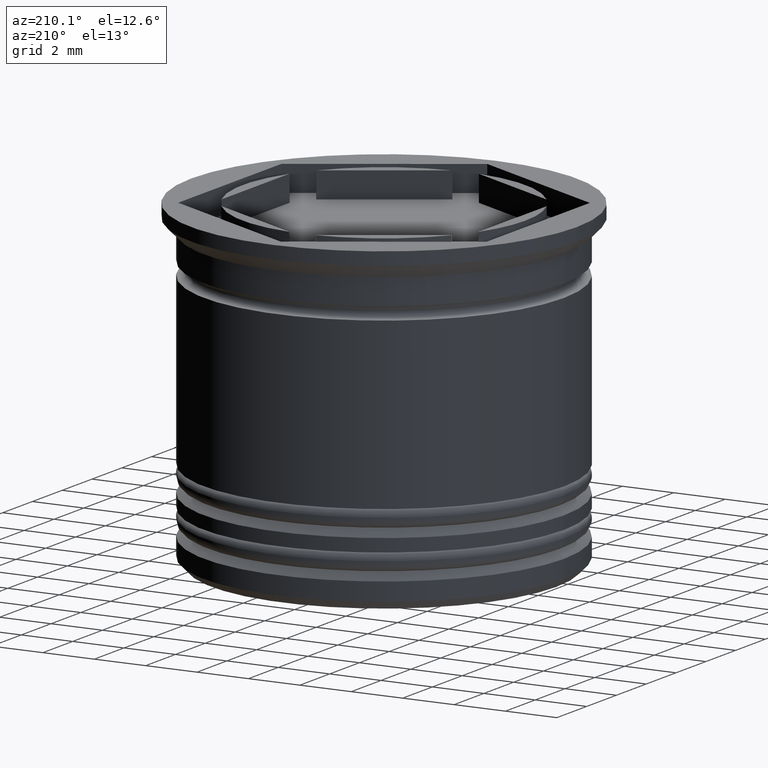
[diagram: clean part render]
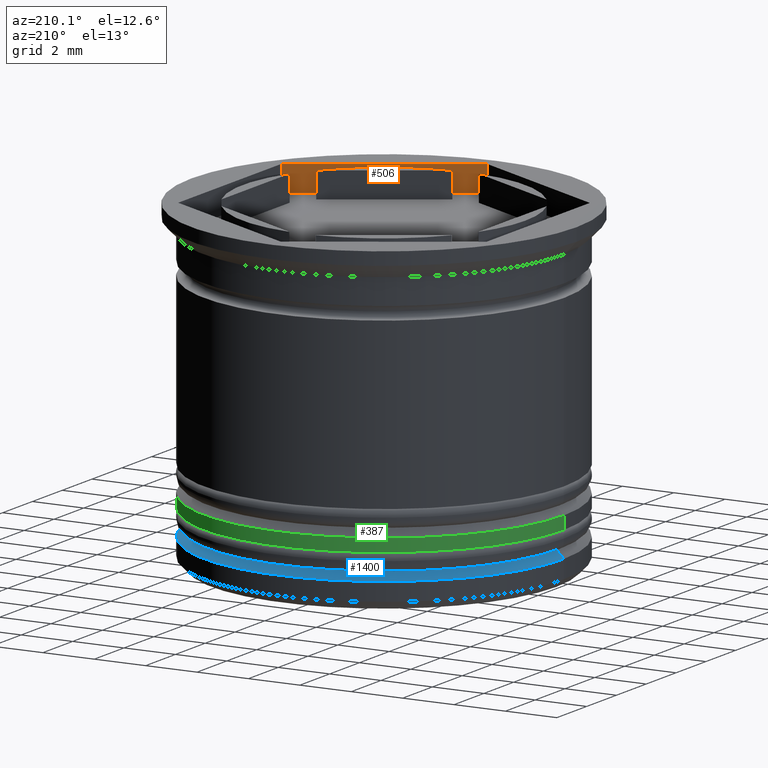
[diagram: same view with three faces highlighted in distinct colors, each labeled with its STEP entity id]
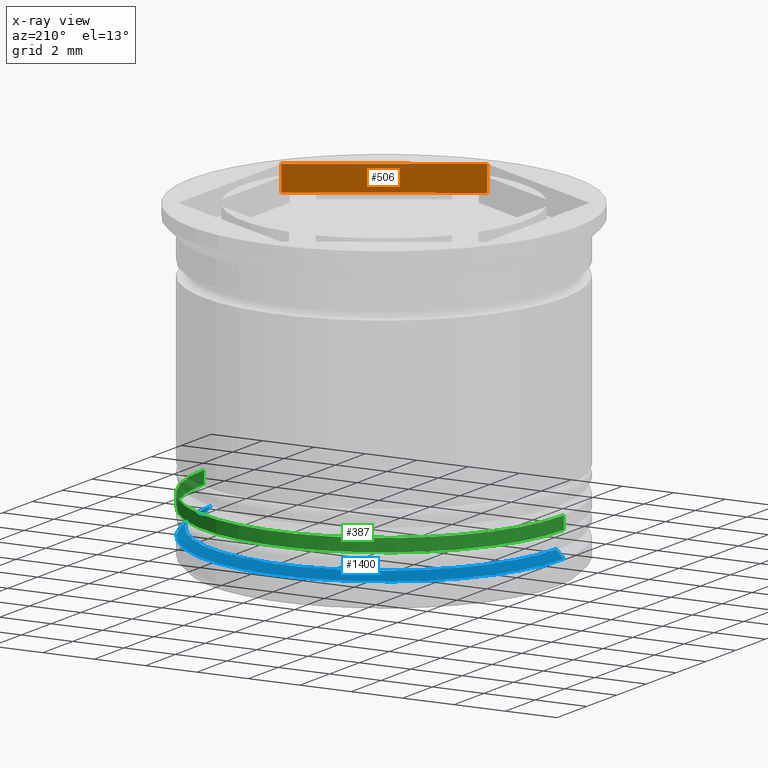
[diagram: x-ray of the same camera — body ghosted, the three highlighted faces saturated]
A machine part, auxiliary view with three faces highlighted in distinct colors.
The next image is the same camera in x-ray (body ghosted, the three faces saturated) — at least one of them is partly hidden behind the body in this view.
Their STEP definitions:

[orange] entity #506 — the highlighted planar face has unit normal (0.5, -0.866, 0).
#36 = PLANE ( 'NONE',  #1602 ) ;
#71 = VERTEX_POINT ( 'NONE', #1494 ) ;
#121 = DIRECTION ( 'NONE',  ( 0.5000000000000001110, -0.8660254037844385966, 0.000000000000000000 ) ) ;
#204 = EDGE_CURVE ( 'NONE', #1133, #71, #965, .T. ) ;
#212 = DIRECTION ( 'NONE',  ( -0.000000000000000000, -0.000000000000000000, 1.000000000000000000 ) ) ;
#214 = ORIENTED_EDGE ( 'NONE', *, *, #1562, .T. ) ;
#280 = CARTESIAN_POINT ( 'NONE',  ( -3.394223061414856671E-17, -6.928203230275509661, 0.000000000000000000 ) ) ;
#411 = DIRECTION ( 'NONE',  ( 0.8660254037844385966, 0.5000000000000001110, 0.000000000000000000 ) ) ;
#464 = EDGE_CURVE ( 'NONE', #1214, #1483, #952, .T. ) ;
#499 = EDGE_LOOP ( 'NONE', ( #214, #1335, #505, #1307 ) ) ;
#505 = ORIENTED_EDGE ( 'NONE', *, *, #509, .F. ) ;
#506 = ADVANCED_FACE ( 'NONE', ( #970 ), #36, .F. ) ;
#509 = EDGE_CURVE ( 'NONE', #1133, #1214, #871, .T. ) ;
#531 = CARTESIAN_POINT ( 'NONE',  ( 6.000000000000000000, -3.464101615137753942, -1.000000000000000000 ) ) ;
#652 = CARTESIAN_POINT ( 'NONE',  ( -3.394223061414856671E-17, -6.928203230275509661, -1.000000000000000000 ) ) ;
#675 = CARTESIAN_POINT ( 'NONE',  ( -3.394223061414856671E-17, -6.928203230275509661, -1.000000000000000000 ) ) ;
#710 = VECTOR ( 'NONE', #411, 1000.000000000000000 ) ;
#871 = LINE ( 'NONE', #1302, #710 ) ;
#941 = CARTESIAN_POINT ( 'NONE',  ( 6.000000000000000000, -3.464101615137753942, -1.000000000000000000 ) ) ;
#952 = LINE ( 'NONE', #531, #1368 ) ;
#953 = CARTESIAN_POINT ( 'NONE',  ( -3.394223061414856671E-17, -6.928203230275509661, -1.000000000000000000 ) ) ;
#965 = LINE ( 'NONE', #953, #1501 ) ;
#970 = FACE_OUTER_BOUND ( 'NONE', #499, .T. ) ;
#1133 = VERTEX_POINT ( 'NONE', #675 ) ;
#1214 = VERTEX_POINT ( 'NONE', #941 ) ;
#1271 = DIRECTION ( 'NONE',  ( -0.000000000000000000, -0.000000000000000000, 1.000000000000000000 ) ) ;
#1302 = CARTESIAN_POINT ( 'NONE',  ( -3.394223061414856671E-17, -6.928203230275509661, -1.000000000000000000 ) ) ;
#1307 = ORIENTED_EDGE ( 'NONE', *, *, #204, .T. ) ;
#1335 = ORIENTED_EDGE ( 'NONE', *, *, #464, .F. ) ;
#1368 = VECTOR ( 'NONE', #1271, 1000.000000000000000 ) ;
#1483 = VERTEX_POINT ( 'NONE', #1622 ) ;
#1486 = DIRECTION ( 'NONE',  ( 0.8660254037844385966, 0.5000000000000001110, 0.000000000000000000 ) ) ;
#1494 = CARTESIAN_POINT ( 'NONE',  ( -3.394223061414856671E-17, -6.928203230275509661, 0.000000000000000000 ) ) ;
#1501 = VECTOR ( 'NONE', #212, 1000.000000000000000 ) ;
#1562 = EDGE_CURVE ( 'NONE', #71, #1483, #1953, .T. ) ;
#1602 = AXIS2_PLACEMENT_3D ( 'NONE', #652, #121, #1623 ) ;
#1622 = CARTESIAN_POINT ( 'NONE',  ( 6.000000000000000000, -3.464101615137753942, 0.000000000000000000 ) ) ;
#1623 = DIRECTION ( 'NONE',  ( 0.8660254037844385966, 0.5000000000000001110, 0.000000000000000000 ) ) ;
#1953 = LINE ( 'NONE', #280, #1965 ) ;
#1965 = VECTOR ( 'NONE', #1486, 1000.000000000000000 ) ;

[blue] entity #1400 — the highlighted conical surface has half-angle 45 deg.
#24 = AXIS2_PLACEMENT_3D ( 'NONE', #709, #595, #825 ) ;
#105 = EDGE_CURVE ( 'NONE', #578, #548, #833, .T. ) ;
#109 = CARTESIAN_POINT ( 'NONE',  ( 0.000000000000000000, 0.000000000000000000, -11.00000000000000178 ) ) ;
#165 = CIRCLE ( 'NONE', #1155, 6.700000000000000178 ) ;
#168 = CARTESIAN_POINT ( 'NONE',  ( 6.499999999999992006, 7.960204194457785616E-16, -11.00000000000000178 ) ) ;
#290 = CARTESIAN_POINT ( 'NONE',  ( 7.000000000000000888, 0.000000000000000000, -11.50000000000000533 ) ) ;
#326 = ORIENTED_EDGE ( 'NONE', *, *, #105, .F. ) ;
#333 = VECTOR ( 'NONE', #732, 1000.000000000000000 ) ;
#455 = CARTESIAN_POINT ( 'NONE',  ( -6.700000000000000178, 8.205133554287266562E-16, -11.20000000000000639 ) ) ;
#532 = EDGE_CURVE ( 'NONE', #1158, #578, #1766, .T. ) ;
#548 = VERTEX_POINT ( 'NONE', #290 ) ;
#578 = VERTEX_POINT ( 'NONE', #1453 ) ;
#595 = DIRECTION ( 'NONE',  ( 0.000000000000000000, 0.000000000000000000, -1.000000000000000000 ) ) ;
#620 = EDGE_CURVE ( 'NONE', #1787, #1158, #165, .T. ) ;
#709 = CARTESIAN_POINT ( 'NONE',  ( 0.000000000000000000, 0.000000000000000000, -11.50000000000000533 ) ) ;
#724 = DIRECTION ( 'NONE',  ( -1.000000000000000000, 0.000000000000000000, 0.000000000000000000 ) ) ;
#732 = DIRECTION ( 'NONE',  ( -0.7071067811865512365, 0.000000000000000000, -0.7071067811865439090 ) ) ;
#756 = DIRECTION ( 'NONE',  ( 0.000000000000000000, 0.000000000000000000, -1.000000000000000000 ) ) ;
#778 = VECTOR ( 'NONE', #1007, 1000.000000000000000 ) ;
#825 = DIRECTION ( 'NONE',  ( -1.000000000000000000, 0.000000000000000000, 0.000000000000000000 ) ) ;
#833 = CIRCLE ( 'NONE', #24, 7.000000000000000888 ) ;
#899 = DIRECTION ( 'NONE',  ( -0.000000000000000000, -0.000000000000000000, 1.000000000000000000 ) ) ;
#1007 = DIRECTION ( 'NONE',  ( 0.7071067811865512365, 8.659560562354978464E-17, -0.7071067811865439090 ) ) ;
#1094 = LINE ( 'NONE', #168, #778 ) ;
#1100 = CARTESIAN_POINT ( 'NONE',  ( 0.000000000000000000, 0.000000000000000000, -11.20000000000000639 ) ) ;
#1155 = AXIS2_PLACEMENT_3D ( 'NONE', #1100, #899, #1722 ) ;
#1158 = VERTEX_POINT ( 'NONE', #455 ) ;
#1165 = CONICAL_SURFACE ( 'NONE', #1778, 6.499999999999992006, 0.7853981633974533860 ) ;
#1180 = CARTESIAN_POINT ( 'NONE',  ( -6.499999999999992006, 0.000000000000000000, -11.00000000000000178 ) ) ;
#1328 = ORIENTED_EDGE ( 'NONE', *, *, #620, .F. ) ;
#1400 = ADVANCED_FACE ( 'NONE', ( #1515 ), #1165, .T. ) ;
#1453 = CARTESIAN_POINT ( 'NONE',  ( -7.000000000000000888, 8.572527594031474176E-16, -11.50000000000000533 ) ) ;
#1515 = FACE_OUTER_BOUND ( 'NONE', #1516, .T. ) ;
#1516 = EDGE_LOOP ( 'NONE', ( #1328, #1605, #326, #1981 ) ) ;
#1605 = ORIENTED_EDGE ( 'NONE', *, *, #1619, .T. ) ;
#1619 = EDGE_CURVE ( 'NONE', #1787, #548, #1094, .T. ) ;
#1722 = DIRECTION ( 'NONE',  ( -1.000000000000000000, 0.000000000000000000, 0.000000000000000000 ) ) ;
#1766 = LINE ( 'NONE', #1180, #333 ) ;
#1778 = AXIS2_PLACEMENT_3D ( 'NONE', #109, #756, #724 ) ;
#1787 = VERTEX_POINT ( 'NONE', #1970 ) ;
#1970 = CARTESIAN_POINT ( 'NONE',  ( 6.700000000000000178, 0.000000000000000000, -11.20000000000000639 ) ) ;
#1981 = ORIENTED_EDGE ( 'NONE', *, *, #532, .F. ) ;

[green] entity #387 — the highlighted cylindrical surface (partial cylindrical patch) has radius 7 mm, axis along (-0, -0, 1).
#18 = CARTESIAN_POINT ( 'NONE',  ( 7.000000000000000888, 0.000000000000000000, -10.00000000000000533 ) ) ;
#119 = CARTESIAN_POINT ( 'NONE',  ( 7.000000000000000888, 0.000000000000000000, 0.000000000000000000 ) ) ;
#130 = LINE ( 'NONE', #1544, #1087 ) ;
#171 = DIRECTION ( 'NONE',  ( 1.000000000000000000, 0.000000000000000000, 0.000000000000000000 ) ) ;
#185 = ORIENTED_EDGE ( 'NONE', *, *, #1380, .T. ) ;
#195 = VERTEX_POINT ( 'NONE', #1430 ) ;
#211 = EDGE_LOOP ( 'NONE', ( #1045, #623, #185, #1648 ) ) ;
#288 = DIRECTION ( 'NONE',  ( -0.000000000000000000, -0.000000000000000000, 1.000000000000000000 ) ) ;
#293 = CARTESIAN_POINT ( 'NONE',  ( -7.000000000000002665, 8.572527594031475162E-16, -10.50000000000000178 ) ) ;
#324 = CARTESIAN_POINT ( 'NONE',  ( 0.000000000000000000, 0.000000000000000000, -10.00000000000000533 ) ) ;
#387 = ADVANCED_FACE ( 'NONE', ( #1982 ), #1392, .T. ) ;
#458 = AXIS2_PLACEMENT_3D ( 'NONE', #1688, #1386, #918 ) ;
#525 = AXIS2_PLACEMENT_3D ( 'NONE', #324, #1363, #920 ) ;
#592 = CARTESIAN_POINT ( 'NONE',  ( 7.000000000000001776, 0.000000000000000000, -10.50000000000000178 ) ) ;
#623 = ORIENTED_EDGE ( 'NONE', *, *, #722, .T. ) ;
#677 = VECTOR ( 'NONE', #288, 1000.000000000000000 ) ;
#722 = EDGE_CURVE ( 'NONE', #1827, #195, #130, .T. ) ;
#767 = DIRECTION ( 'NONE',  ( -0.000000000000000000, -0.000000000000000000, 1.000000000000000000 ) ) ;
#918 = DIRECTION ( 'NONE',  ( 1.000000000000000000, 0.000000000000000000, 0.000000000000000000 ) ) ;
#920 = DIRECTION ( 'NONE',  ( -1.000000000000000000, 0.000000000000000000, 0.000000000000000000 ) ) ;
#940 = DIRECTION ( 'NONE',  ( -0.000000000000000000, -0.000000000000000000, 1.000000000000000000 ) ) ;
#960 = CIRCLE ( 'NONE', #525, 7.000000000000000888 ) ;
#1045 = ORIENTED_EDGE ( 'NONE', *, *, #1697, .T. ) ;
#1087 = VECTOR ( 'NONE', #940, 1000.000000000000000 ) ;
#1181 = EDGE_CURVE ( 'NONE', #1730, #1635, #1644, .T. ) ;
#1319 = CIRCLE ( 'NONE', #1993, 7.000000000000001776 ) ;
#1363 = DIRECTION ( 'NONE',  ( 0.000000000000000000, 0.000000000000000000, -1.000000000000000000 ) ) ;
#1380 = EDGE_CURVE ( 'NONE', #195, #1635, #960, .T. ) ;
#1386 = DIRECTION ( 'NONE',  ( -0.000000000000000000, -0.000000000000000000, 1.000000000000000000 ) ) ;
#1392 = CYLINDRICAL_SURFACE ( 'NONE', #458, 7.000000000000000888 ) ;
#1430 = CARTESIAN_POINT ( 'NONE',  ( -7.000000000000000888, 8.572527594031474176E-16, -10.00000000000000533 ) ) ;
#1536 = CARTESIAN_POINT ( 'NONE',  ( 0.000000000000000000, 0.000000000000000000, -10.50000000000000178 ) ) ;
#1544 = CARTESIAN_POINT ( 'NONE',  ( -7.000000000000000888, 8.572527594031474176E-16, 0.000000000000000000 ) ) ;
#1635 = VERTEX_POINT ( 'NONE', #18 ) ;
#1644 = LINE ( 'NONE', #119, #677 ) ;
#1648 = ORIENTED_EDGE ( 'NONE', *, *, #1181, .F. ) ;
#1688 = CARTESIAN_POINT ( 'NONE',  ( 0.000000000000000000, 0.000000000000000000, 0.000000000000000000 ) ) ;
#1697 = EDGE_CURVE ( 'NONE', #1730, #1827, #1319, .T. ) ;
#1730 = VERTEX_POINT ( 'NONE', #592 ) ;
#1827 = VERTEX_POINT ( 'NONE', #293 ) ;
#1982 = FACE_OUTER_BOUND ( 'NONE', #211, .T. ) ;
#1993 = AXIS2_PLACEMENT_3D ( 'NONE', #1536, #767, #171 ) ;